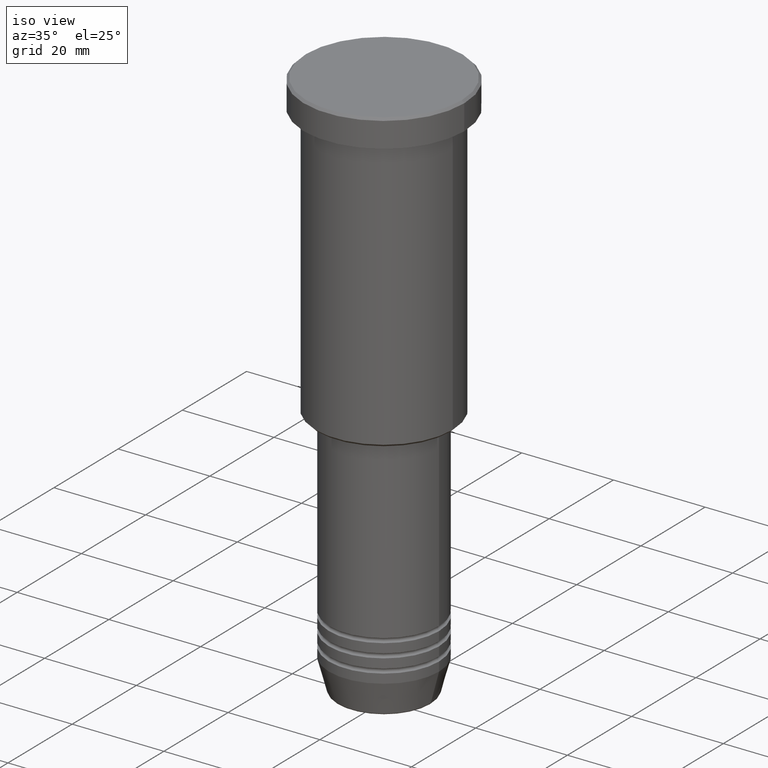
[diagram: clean part render]
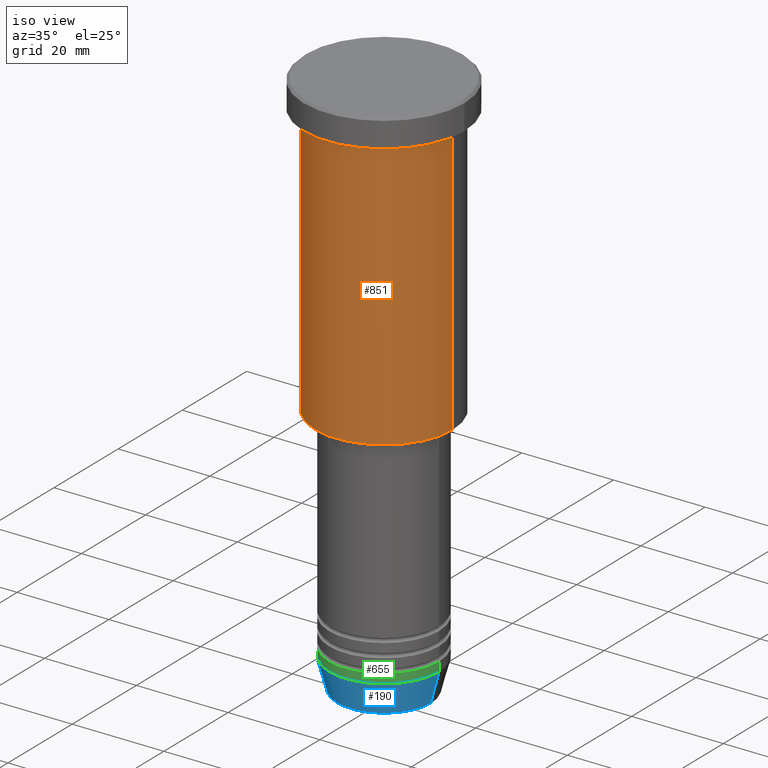
[diagram: same view with three faces highlighted in distinct colors, each labeled with its STEP entity id]
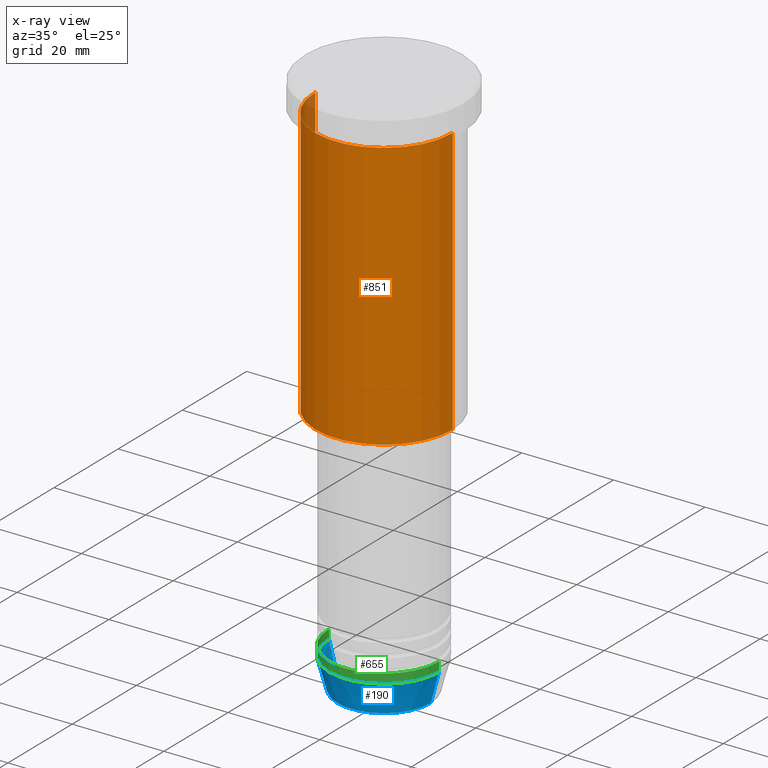
[diagram: x-ray of the same camera — body ghosted, the three highlighted faces saturated]
A machine part, iso view with three faces highlighted in distinct colors.
The next image is the same camera in x-ray (body ghosted, the three faces saturated) — at least one of them is partly hidden behind the body in this view.
Their STEP definitions:

[orange] entity #851 — the highlighted cylindrical surface (partial cylindrical patch) has radius 15 mm, axis along (-0, -0, 1).
#18 = LINE ( 'NONE', #272, #387 ) ;
#22 = EDGE_CURVE ( 'NONE', #348, #586, #414, .T. ) ;
#25 = EDGE_CURVE ( 'NONE', #307, #586, #746, .T. ) ;
#80 = EDGE_CURVE ( 'NONE', #762, #348, #369, .T. ) ;
#121 = DIRECTION ( 'NONE',  ( -0.000000000000000000, -0.000000000000000000, 1.000000000000000000 ) ) ;
#189 = CARTESIAN_POINT ( 'NONE',  ( -15.00000000000000000, 1.836970198721029589E-15, -65.50000000000002842 ) ) ;
#272 = CARTESIAN_POINT ( 'NONE',  ( -15.00000000000000000, 1.836970198721029589E-15, 0.000000000000000000 ) ) ;
#292 = EDGE_LOOP ( 'NONE', ( #812, #722, #794, #952 ) ) ;
#307 = VERTEX_POINT ( 'NONE', #381 ) ;
#315 = CARTESIAN_POINT ( 'NONE',  ( 15.00000000000000000, 0.000000000000000000, 0.000000000000000000 ) ) ;
#323 = DIRECTION ( 'NONE',  ( 1.000000000000000000, 0.000000000000000000, 0.000000000000000000 ) ) ;
#343 = VECTOR ( 'NONE', #951, 1000.000000000000000 ) ;
#344 = EDGE_CURVE ( 'NONE', #762, #307, #18, .T. ) ;
#348 = VERTEX_POINT ( 'NONE', #833 ) ;
#369 = CIRCLE ( 'NONE', #1046, 15.00000000000000000 ) ;
#381 = CARTESIAN_POINT ( 'NONE',  ( -15.00000000000000000, 1.836970198721029589E-15, -6.999999999999995559 ) ) ;
#387 = VECTOR ( 'NONE', #651, 1000.000000000000000 ) ;
#401 = CARTESIAN_POINT ( 'NONE',  ( 0.000000000000000000, 0.000000000000000000, -65.50000000000002842 ) ) ;
#414 = LINE ( 'NONE', #315, #343 ) ;
#586 = VERTEX_POINT ( 'NONE', #1055 ) ;
#651 = DIRECTION ( 'NONE',  ( -0.000000000000000000, -0.000000000000000000, 1.000000000000000000 ) ) ;
#667 = AXIS2_PLACEMENT_3D ( 'NONE', #1091, #1111, #1027 ) ;
#722 = ORIENTED_EDGE ( 'NONE', *, *, #80, .T. ) ;
#734 = FACE_OUTER_BOUND ( 'NONE', #292, .T. ) ;
#746 = CIRCLE ( 'NONE', #1064, 15.00000000000000000 ) ;
#762 = VERTEX_POINT ( 'NONE', #189 ) ;
#794 = ORIENTED_EDGE ( 'NONE', *, *, #22, .T. ) ;
#812 = ORIENTED_EDGE ( 'NONE', *, *, #344, .F. ) ;
#833 = CARTESIAN_POINT ( 'NONE',  ( 15.00000000000000000, 0.000000000000000000, -65.50000000000002842 ) ) ;
#851 = ADVANCED_FACE ( 'NONE', ( #734 ), #1107, .T. ) ;
#858 = DIRECTION ( 'NONE',  ( -0.000000000000000000, -0.000000000000000000, 1.000000000000000000 ) ) ;
#945 = DIRECTION ( 'NONE',  ( -1.000000000000000000, 0.000000000000000000, 0.000000000000000000 ) ) ;
#951 = DIRECTION ( 'NONE',  ( -0.000000000000000000, -0.000000000000000000, 1.000000000000000000 ) ) ;
#952 = ORIENTED_EDGE ( 'NONE', *, *, #25, .F. ) ;
#1027 = DIRECTION ( 'NONE',  ( 1.000000000000000000, 0.000000000000000000, 0.000000000000000000 ) ) ;
#1046 = AXIS2_PLACEMENT_3D ( 'NONE', #401, #858, #945 ) ;
#1055 = CARTESIAN_POINT ( 'NONE',  ( 15.00000000000000000, 0.000000000000000000, -6.999999999999995559 ) ) ;
#1064 = AXIS2_PLACEMENT_3D ( 'NONE', #1142, #121, #323 ) ;
#1091 = CARTESIAN_POINT ( 'NONE',  ( 0.000000000000000000, 0.000000000000000000, 0.000000000000000000 ) ) ;
#1107 = CYLINDRICAL_SURFACE ( 'NONE', #667, 15.00000000000000000 ) ;
#1111 = DIRECTION ( 'NONE',  ( -0.000000000000000000, -0.000000000000000000, 1.000000000000000000 ) ) ;
#1142 = CARTESIAN_POINT ( 'NONE',  ( 0.000000000000000000, 0.000000000000000000, -6.999999999999995559 ) ) ;

[blue] entity #190 — the highlighted conical surface has half-angle 15 deg.
#98 = ORIENTED_EDGE ( 'NONE', *, *, #298, .F. ) ;
#102 = DIRECTION ( 'NONE',  ( 1.000000000000000000, 0.000000000000000000, 0.000000000000000000 ) ) ;
#158 = ORIENTED_EDGE ( 'NONE', *, *, #335, .F. ) ;
#165 = EDGE_LOOP ( 'NONE', ( #158, #1169, #912, #98 ) ) ;
#190 = ADVANCED_FACE ( 'NONE', ( #1087 ), #1030, .T. ) ;
#197 = LINE ( 'NONE', #268, #548 ) ;
#234 = VERTEX_POINT ( 'NONE', #524 ) ;
#242 = DIRECTION ( 'NONE',  ( -0.000000000000000000, -0.000000000000000000, 1.000000000000000000 ) ) ;
#268 = CARTESIAN_POINT ( 'NONE',  ( -12.00000000000000000, 1.469576158976823947E-15, -114.0000000000000142 ) ) ;
#276 = CIRCLE ( 'NONE', #314, 10.22365507213719305 ) ;
#285 = CARTESIAN_POINT ( 'NONE',  ( 10.22365507213719305, 0.000000000000000000, -120.6294095225512706 ) ) ;
#298 = EDGE_CURVE ( 'NONE', #1002, #234, #448, .T. ) ;
#314 = AXIS2_PLACEMENT_3D ( 'NONE', #916, #728, #102 ) ;
#316 = VERTEX_POINT ( 'NONE', #823 ) ;
#335 = EDGE_CURVE ( 'NONE', #316, #1002, #197, .T. ) ;
#361 = DIRECTION ( 'NONE',  ( 1.000000000000000000, 0.000000000000000000, 0.000000000000000000 ) ) ;
#420 = EDGE_CURVE ( 'NONE', #316, #874, #276, .T. ) ;
#448 = CIRCLE ( 'NONE', #803, 12.00000000000000000 ) ;
#517 = CARTESIAN_POINT ( 'NONE',  ( 0.000000000000000000, 0.000000000000000000, -114.0000000000000142 ) ) ;
#524 = CARTESIAN_POINT ( 'NONE',  ( 12.00000000000000000, 0.000000000000000000, -114.0000000000000142 ) ) ;
#548 = VECTOR ( 'NONE', #906, 1000.000000000000000 ) ;
#602 = DIRECTION ( 'NONE',  ( -0.000000000000000000, -0.000000000000000000, 1.000000000000000000 ) ) ;
#728 = DIRECTION ( 'NONE',  ( -0.000000000000000000, -0.000000000000000000, 1.000000000000000000 ) ) ;
#792 = DIRECTION ( 'NONE',  ( 0.2588190451025213501, 0.000000000000000000, 0.9659258262890680902 ) ) ;
#803 = AXIS2_PLACEMENT_3D ( 'NONE', #1183, #242, #361 ) ;
#823 = CARTESIAN_POINT ( 'NONE',  ( -10.22365507213719305, 1.360806402472382744E-15, -120.6294095225512706 ) ) ;
#852 = CARTESIAN_POINT ( 'NONE',  ( -12.00000000000000000, 1.469576158976823947E-15, -114.0000000000000142 ) ) ;
#874 = VERTEX_POINT ( 'NONE', #285 ) ;
#906 = DIRECTION ( 'NONE',  ( -0.2588190451025213501, 3.169619151431772337E-17, 0.9659258262890680902 ) ) ;
#912 = ORIENTED_EDGE ( 'NONE', *, *, #1146, .T. ) ;
#916 = CARTESIAN_POINT ( 'NONE',  ( 0.000000000000000000, 0.000000000000000000, -120.6294095225512706 ) ) ;
#960 = LINE ( 'NONE', #1058, #1082 ) ;
#1002 = VERTEX_POINT ( 'NONE', #852 ) ;
#1030 = CONICAL_SURFACE ( 'NONE', #1159, 12.00000000000000000, 0.2617993877991500740 ) ;
#1058 = CARTESIAN_POINT ( 'NONE',  ( 12.00000000000000000, 0.000000000000000000, -114.0000000000000142 ) ) ;
#1073 = DIRECTION ( 'NONE',  ( 1.000000000000000000, 0.000000000000000000, 0.000000000000000000 ) ) ;
#1082 = VECTOR ( 'NONE', #792, 1000.000000000000000 ) ;
#1087 = FACE_OUTER_BOUND ( 'NONE', #165, .T. ) ;
#1146 = EDGE_CURVE ( 'NONE', #874, #234, #960, .T. ) ;
#1159 = AXIS2_PLACEMENT_3D ( 'NONE', #517, #602, #1073 ) ;
#1169 = ORIENTED_EDGE ( 'NONE', *, *, #420, .T. ) ;
#1183 = CARTESIAN_POINT ( 'NONE',  ( 0.000000000000000000, 0.000000000000000000, -114.0000000000000142 ) ) ;

[green] entity #655 — the highlighted cylindrical surface (partial cylindrical patch) has radius 12 mm, axis along (-0, -0, 1).
#4 = ORIENTED_EDGE ( 'NONE', *, *, #266, .T. ) ;
#43 = DIRECTION ( 'NONE',  ( -0.000000000000000000, -0.000000000000000000, 1.000000000000000000 ) ) ;
#72 = FACE_OUTER_BOUND ( 'NONE', #455, .T. ) ;
#74 = EDGE_CURVE ( 'NONE', #1002, #900, #683, .T. ) ;
#107 = VECTOR ( 'NONE', #43, 1000.000000000000000 ) ;
#127 = AXIS2_PLACEMENT_3D ( 'NONE', #891, #337, #697 ) ;
#164 = DIRECTION ( 'NONE',  ( -0.000000000000000000, -0.000000000000000000, 1.000000000000000000 ) ) ;
#233 = CARTESIAN_POINT ( 'NONE',  ( -12.00000000000000000, 1.469576158976823947E-15, 0.000000000000000000 ) ) ;
#234 = VERTEX_POINT ( 'NONE', #524 ) ;
#239 = EDGE_CURVE ( 'NONE', #900, #419, #1177, .T. ) ;
#242 = DIRECTION ( 'NONE',  ( -0.000000000000000000, -0.000000000000000000, 1.000000000000000000 ) ) ;
#265 = ORIENTED_EDGE ( 'NONE', *, *, #239, .F. ) ;
#266 = EDGE_CURVE ( 'NONE', #234, #419, #981, .T. ) ;
#298 = EDGE_CURVE ( 'NONE', #1002, #234, #448, .T. ) ;
#302 = ORIENTED_EDGE ( 'NONE', *, *, #74, .F. ) ;
#337 = DIRECTION ( 'NONE',  ( -0.000000000000000000, -0.000000000000000000, 1.000000000000000000 ) ) ;
#361 = DIRECTION ( 'NONE',  ( 1.000000000000000000, 0.000000000000000000, 0.000000000000000000 ) ) ;
#410 = ORIENTED_EDGE ( 'NONE', *, *, #298, .T. ) ;
#419 = VERTEX_POINT ( 'NONE', #811 ) ;
#426 = DIRECTION ( 'NONE',  ( 1.000000000000000000, 0.000000000000000000, 0.000000000000000000 ) ) ;
#434 = CYLINDRICAL_SURFACE ( 'NONE', #127, 12.00000000000000000 ) ;
#448 = CIRCLE ( 'NONE', #803, 12.00000000000000000 ) ;
#455 = EDGE_LOOP ( 'NONE', ( #302, #410, #4, #265 ) ) ;
#524 = CARTESIAN_POINT ( 'NONE',  ( 12.00000000000000000, 0.000000000000000000, -114.0000000000000142 ) ) ;
#611 = CARTESIAN_POINT ( 'NONE',  ( 0.000000000000000000, 0.000000000000000000, -112.0000000000000142 ) ) ;
#655 = ADVANCED_FACE ( 'NONE', ( #72 ), #434, .T. ) ;
#657 = CARTESIAN_POINT ( 'NONE',  ( -12.00000000000000000, 1.469576158976823947E-15, -112.0000000000000142 ) ) ;
#683 = LINE ( 'NONE', #233, #107 ) ;
#697 = DIRECTION ( 'NONE',  ( 1.000000000000000000, 0.000000000000000000, 0.000000000000000000 ) ) ;
#790 = DIRECTION ( 'NONE',  ( -0.000000000000000000, -0.000000000000000000, 1.000000000000000000 ) ) ;
#803 = AXIS2_PLACEMENT_3D ( 'NONE', #1183, #242, #361 ) ;
#811 = CARTESIAN_POINT ( 'NONE',  ( 12.00000000000000000, 0.000000000000000000, -112.0000000000000142 ) ) ;
#822 = AXIS2_PLACEMENT_3D ( 'NONE', #611, #790, #426 ) ;
#852 = CARTESIAN_POINT ( 'NONE',  ( -12.00000000000000000, 1.469576158976823947E-15, -114.0000000000000142 ) ) ;
#891 = CARTESIAN_POINT ( 'NONE',  ( 0.000000000000000000, 0.000000000000000000, 0.000000000000000000 ) ) ;
#900 = VERTEX_POINT ( 'NONE', #657 ) ;
#981 = LINE ( 'NONE', #1168, #985 ) ;
#985 = VECTOR ( 'NONE', #164, 1000.000000000000000 ) ;
#1002 = VERTEX_POINT ( 'NONE', #852 ) ;
#1168 = CARTESIAN_POINT ( 'NONE',  ( 12.00000000000000000, 0.000000000000000000, 0.000000000000000000 ) ) ;
#1177 = CIRCLE ( 'NONE', #822, 12.00000000000000000 ) ;
#1183 = CARTESIAN_POINT ( 'NONE',  ( 0.000000000000000000, 0.000000000000000000, -114.0000000000000142 ) ) ;